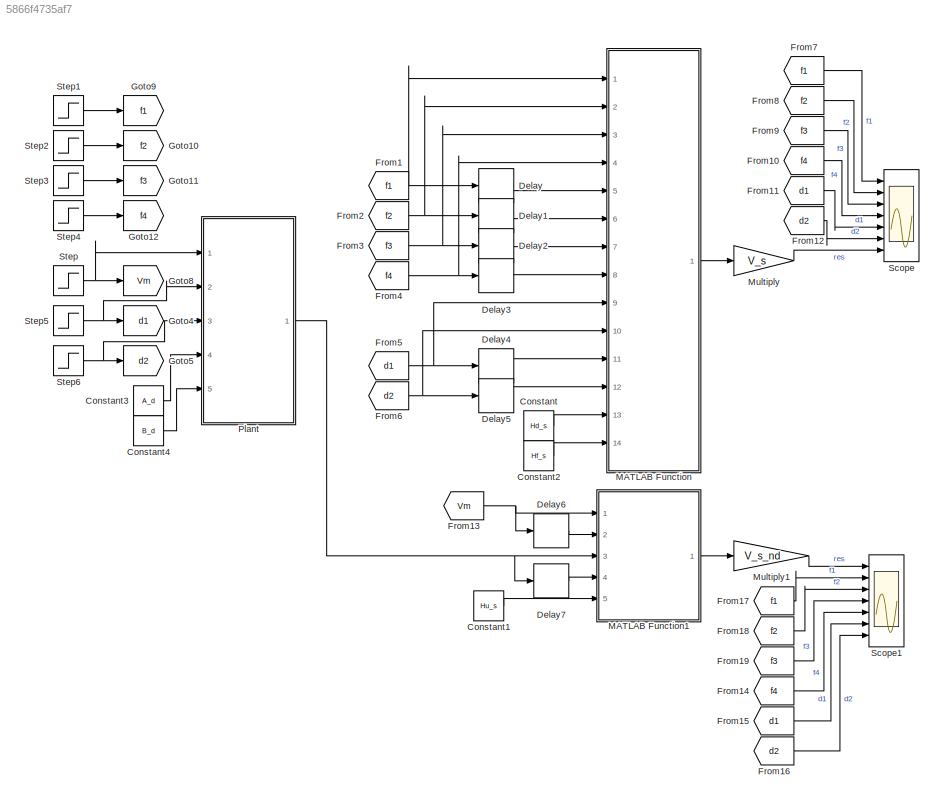
MODEL slx_5866f4735af7
KIND model
CONFIG AbsTol = auto
CONFIG EnableMultiTasking = off
CONFIG FixedStep = auto
CONFIG MaxStep = auto
CONFIG MinStep = auto
CONFIG RelTol = 1e-3
CONFIG SampleTimeConstraint = Unconstrained
CONFIG SolverName = VariableStepAuto
CONFIG StartTime = 0.0
CONFIG StopTime = 10.0
BLOCK [Constant] Constant
  Value = Hd_s
BLOCK [Constant] Constant1
  Value = Hu_s
BLOCK [Constant] Constant2
  Value = Hf_s
BLOCK [Constant] Constant3
  Value = A_d
BLOCK [Constant] Constant4
  Value = B_d
BLOCK [Delay] Delay
  DelayLength = 1
  InitialCondition = 0
  InputPortMap = u0
  Ports = [1, 1]
BLOCK [Delay] Delay1
  DelayLength = 1
  InitialCondition = 0
  InputPortMap = u0
  Ports = [1, 1]
BLOCK [Delay] Delay2
  DelayLength = 1
  InitialCondition = 0
  InputPortMap = u0
  Ports = [1, 1]
BLOCK [Delay] Delay3
  DelayLength = 1
  InitialCondition = 0
  InputPortMap = u0
  Ports = [1, 1]
BLOCK [Delay] Delay4
  DelayLength = 1
  InitialCondition = 0
  InputPortMap = u0
  Ports = [1, 1]
BLOCK [Delay] Delay5
  DelayLength = 1
  InitialCondition = 0
  InputPortMap = u0
  Ports = [1, 1]
BLOCK [Delay] Delay6
  DelayLength = 1
  InitialCondition = 0
  InputPortMap = u0
  Ports = [1, 1]
BLOCK [Delay] Delay7
  DelayLength = 1
  InitialCondition = 0
  InputPortMap = u0
  Ports = [1, 1]
BLOCK [From] From1
  GotoTag = f1
  TagVisibility = global
BLOCK [From] From10
  GotoTag = f4
  TagVisibility = global
BLOCK [From] From11
  GotoTag = d1
  TagVisibility = global
BLOCK [From] From12
  GotoTag = d2
  TagVisibility = global
BLOCK [From] From13
  GotoTag = Vm
  TagVisibility = global
BLOCK [From] From14
  GotoTag = f4
  TagVisibility = global
BLOCK [From] From15
  GotoTag = d1
  TagVisibility = global
BLOCK [From] From16
  GotoTag = d2
  TagVisibility = global
BLOCK [From] From17
  GotoTag = f1
  TagVisibility = global
BLOCK [From] From18
  GotoTag = f2
  TagVisibility = global
BLOCK [From] From19
  GotoTag = f3
  TagVisibility = global
BLOCK [From] From2
  GotoTag = f2
  TagVisibility = global
BLOCK [From] From3
  GotoTag = f3
  TagVisibility = global
BLOCK [From] From4
  GotoTag = f4
  TagVisibility = global
BLOCK [From] From5
  GotoTag = d1
  TagVisibility = global
BLOCK [From] From6
  GotoTag = d2
  TagVisibility = global
BLOCK [From] From7
  GotoTag = f1
  TagVisibility = global
BLOCK [From] From8
  GotoTag = f2
  TagVisibility = global
BLOCK [From] From9
  GotoTag = f3
  TagVisibility = global
BLOCK [Goto] Goto10
  GotoTag = f2
  TagVisibility = global
BLOCK [Goto] Goto11
  GotoTag = f3
  TagVisibility = global
BLOCK [Goto] Goto12
  GotoTag = f4
  TagVisibility = global
BLOCK [Goto] Goto4
  GotoTag = d1
  TagVisibility = global
BLOCK [Goto] Goto5
  GotoTag = d2
  TagVisibility = global
BLOCK [Goto] Goto8
  GotoTag = Vm
  NameLocation = top
  TagVisibility = global
BLOCK [Goto] Goto9
  GotoTag = f1
  TagVisibility = global
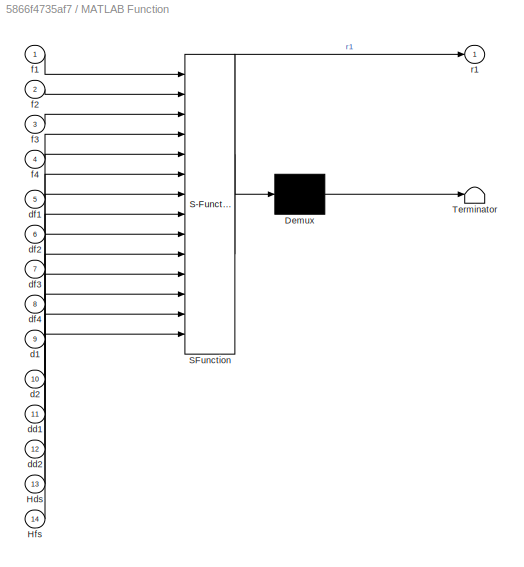
BLOCK [SubSystem] MATLAB Function
  ErrorFcn = Stateflow.Translate.translate
  PermitHierarchicalResolution = ExplicitOnly
  Ports = [14, 1]
  RequestExecContextInheritance = off
  SFBlockType = MATLAB Function
  TreatAsAtomicUnit = on
BLOCK [Demux] MATLAB Function/ Demux 
  Outputs = 1
  Ports = [1, 1]
BLOCK [S-Function] MATLAB Function/ SFunction 
  EnableBusSupport = on
  FunctionName = sf_sfun
  PortCounts = [14 2]
  Ports = [14, 2]
  SFcnIsStateOwnerBlock = off
  SFunctionDeploymentMode = off
  Tag = Stateflow S-Function 1
BLOCK [Terminator] MATLAB Function/ Terminator 
BLOCK [Inport] MATLAB Function/Hds
  Port = 13
BLOCK [Inport] MATLAB Function/Hfs
  Port = 14
BLOCK [Inport] MATLAB Function/d1
  Port = 9
BLOCK [Inport] MATLAB Function/d2
  Port = 10
BLOCK [Inport] MATLAB Function/dd1
  Port = 11
BLOCK [Inport] MATLAB Function/dd2
  Port = 12
BLOCK [Inport] MATLAB Function/df1
  Port = 5
BLOCK [Inport] MATLAB Function/df2
  Port = 6
BLOCK [Inport] MATLAB Function/df3
  Port = 7
BLOCK [Inport] MATLAB Function/df4
  Port = 8
BLOCK [Inport] MATLAB Function/f1
BLOCK [Inport] MATLAB Function/f2
  Port = 2
BLOCK [Inport] MATLAB Function/f3
  Port = 3
BLOCK [Inport] MATLAB Function/f4
  Port = 4
BLOCK [Outport] MATLAB Function/r1
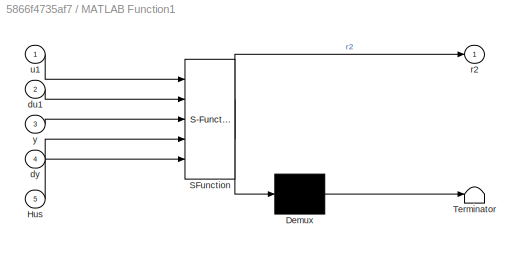
BLOCK [SubSystem] MATLAB Function1
  ErrorFcn = Stateflow.Translate.translate
  PermitHierarchicalResolution = ExplicitOnly
  Ports = [5, 1]
  RequestExecContextInheritance = off
  SFBlockType = MATLAB Function
  TreatAsAtomicUnit = on
BLOCK [Demux] MATLAB Function1/ Demux 
  Outputs = 1
  Ports = [1, 1]
BLOCK [S-Function] MATLAB Function1/ SFunction 
  EnableBusSupport = on
  FunctionName = sf_sfun
  PortCounts = [5 2]
  Ports = [5, 2]
  SFcnIsStateOwnerBlock = off
  SFunctionDeploymentMode = off
  Tag = Stateflow S-Function 3
BLOCK [Terminator] MATLAB Function1/ Terminator 
BLOCK [Inport] MATLAB Function1/Hus
  Port = 5
BLOCK [Inport] MATLAB Function1/du1
  Port = 2
BLOCK [Inport] MATLAB Function1/dy
  Port = 4
BLOCK [Outport] MATLAB Function1/r2
BLOCK [Inport] MATLAB Function1/u1
BLOCK [Inport] MATLAB Function1/y
  Port = 3
BLOCK [Gain] Multiply
  Gain = V_s
  Multiplication = Matrix(K*u)
BLOCK [Gain] Multiply1
  Gain = V_s_nd
  Multiplication = Matrix(K*u)
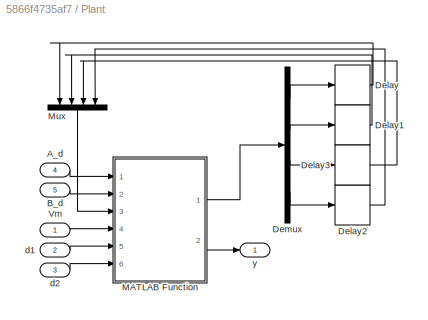
BLOCK [SubSystem] Plant
  Ports = [5, 1]
  RequestExecContextInheritance = off
BLOCK [Inport] Plant/A_d
  Port = 4
BLOCK [Inport] Plant/B_d
  Port = 5
BLOCK [Delay] Plant/Delay
  DelayLength = 1
  InputPortMap = u0
  InputProcessing = Columns as channels (frame based)
  Ports = [1, 1]
BLOCK [Delay] Plant/Delay1
  DelayLength = 1
  InputPortMap = u0
  InputProcessing = Columns as channels (frame based)
  Ports = [1, 1]
BLOCK [Delay] Plant/Delay2
  DelayLength = 1
  InputPortMap = u0
  InputProcessing = Columns as channels (frame based)
  Ports = [1, 1]
BLOCK [Delay] Plant/Delay3
  DelayLength = 1
  InputPortMap = u0
  InputProcessing = Columns as channels (frame based)
  Ports = [1, 1]
BLOCK [Demux] Plant/Demux
  Ports = [1, 4]
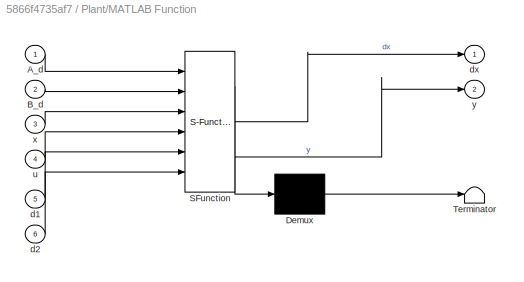
BLOCK [SubSystem] Plant/MATLAB Function
  ErrorFcn = Stateflow.Translate.translate
  PermitHierarchicalResolution = ExplicitOnly
  Ports = [6, 2]
  RequestExecContextInheritance = off
  SFBlockType = MATLAB Function
  TreatAsAtomicUnit = on
BLOCK [Demux] Plant/MATLAB Function/ Demux 
  Outputs = 1
  Ports = [1, 1]
BLOCK [S-Function] Plant/MATLAB Function/ SFunction 
  EnableBusSupport = on
  FunctionName = sf_sfun
  PortCounts = [6 3]
  Ports = [6, 3]
  SFcnIsStateOwnerBlock = off
  SFunctionDeploymentMode = off
  Tag = Stateflow S-Function 2
BLOCK [Terminator] Plant/MATLAB Function/ Terminator 
BLOCK [Inport] Plant/MATLAB Function/A_d
BLOCK [Inport] Plant/MATLAB Function/B_d
  Port = 2
BLOCK [Inport] Plant/MATLAB Function/d1
  Port = 5
BLOCK [Inport] Plant/MATLAB Function/d2
  Port = 6
BLOCK [Outport] Plant/MATLAB Function/dx
BLOCK [Inport] Plant/MATLAB Function/u
  Port = 4
BLOCK [Inport] Plant/MATLAB Function/x
  Port = 3
BLOCK [Outport] Plant/MATLAB Function/y
  Port = 2
BLOCK [Mux] Plant/Mux
  DisplayOption = bar
  NameLocation = left
  Ports = [4, 1]
BLOCK [Inport] Plant/Vm
BLOCK [Inport] Plant/d1
  Port = 2
BLOCK [Inport] Plant/d2
  Port = 3
BLOCK [Outport] Plant/y
BLOCK [Scope] Scope
  Floating = off
  NumInputPorts = 7
  Ports = [7]
  ScopeSpecificationString = Simulink.scopes.TimeScopeBlockCfg('CurrentConfiguration', extmgr.ConfigurationSet(extmgr.Configuration('Core','General UI',true),extmgr.Configuration('Core','Source UI',true),extmgr.Configuration('Sources','WiredSimulink',true),extmgr.Configuration('Visuals','Time Domain',true,'SerializedDisplays',{struct('MinYLimReal','-0.375','MaxYLimReal','2.41637','YLabelReal','','MinYLimMag','0.00000','MaxYLi...<+1679ch>
BLOCK [Scope] Scope1
  Floating = off
  NumInputPorts = 7
  Ports = [7]
  ScopeSpecificationString = Simulink.scopes.TimeScopeBlockCfg('CurrentConfiguration', extmgr.ConfigurationSet(extmgr.Configuration('Core','General UI',true),extmgr.Configuration('Core','Source UI',true),extmgr.Configuration('Sources','WiredSimulink',true,'DataLoggingVariableName','ScopeData1'),extmgr.Configuration('Visuals','Time Domain',true,'SerializedDisplays',{struct('MinYLimReal','-0.00146','MaxYLimReal','0.01316','YLab...<+2365ch>
BLOCK [Step] Step
  After = 5
  Before = 1
  SampleTime = 0
  Time = 2
BLOCK [Step] Step1
  After = 2
  SampleTime = 0
BLOCK [Step] Step2
  After = 2
  SampleTime = 0
  Time = 2
BLOCK [Step] Step3
  After = 2
  SampleTime = 0
  Time = 3
BLOCK [Step] Step4
  After = 3
  SampleTime = 0
  Time = 4
BLOCK [Step] Step5
  After = 0.1
  SampleTime = 0
  Time = 2.5
BLOCK [Step] Step6
  After = 0.2
  SampleTime = 0
  Time = 4.5
LINE Constant1:1 -> MATLAB Function1:5
LINE Constant2:1 -> MATLAB Function:14
LINE Constant3:1 -> Plant:4
LINE Constant4:1 -> Plant:5
LINE Constant:1 -> MATLAB Function:13
LINE Delay1:1 -> MATLAB Function:6
LINE Delay2:1 -> MATLAB Function:7
LINE Delay3:1 -> MATLAB Function:8
LINE Delay4:1 -> MATLAB Function:11
LINE Delay5:1 -> MATLAB Function:12
LINE Delay6:1 -> MATLAB Function1:2
LINE Delay7:1 -> MATLAB Function1:4
LINE Delay:1 -> MATLAB Function:5
LINE From10:1 -> Scope:4
LINE From11:1 -> Scope:5
LINE From12:1 -> Scope:6
NET From13:1 -> Delay6:1, MATLAB Function1:1
LINE From14:1 -> Scope1:5
LINE From15:1 -> Scope1:6
LINE From16:1 -> Scope1:7
LINE From17:1 -> Scope1:2
LINE From18:1 -> Scope1:3
LINE From19:1 -> Scope1:4
NET From1:1 -> Delay:1, MATLAB Function:1
NET From2:1 -> Delay1:1, MATLAB Function:2
NET From3:1 -> Delay2:1, MATLAB Function:3
NET From4:1 -> Delay3:1, MATLAB Function:4
NET From5:1 -> Delay4:1, MATLAB Function:9
NET From6:1 -> Delay5:1, MATLAB Function:10
LINE From7:1 -> Scope:1
LINE From8:1 -> Scope:2
LINE From9:1 -> Scope:3
LINE MATLAB Function1:1 -> Multiply1:1
LINE MATLAB Function:1 -> Multiply:1
LINE Multiply1:1 -> Scope1:1
LINE Multiply:1 -> Scope:7
LINE Plant/A_d:1 -> Plant/MATLAB Function:1
LINE Plant/B_d:1 -> Plant/MATLAB Function:2
LINE Plant/Delay1:1 -> Plant/Mux:2
LINE Plant/Delay2:1 -> Plant/Mux:4
LINE Plant/Delay3:1 -> Plant/Mux:3
LINE Plant/Delay:1 -> Plant/Mux:1
LINE Plant/Demux:1 -> Plant/Delay:1
LINE Plant/Demux:2 -> Plant/Delay1:1
LINE Plant/Demux:3 -> Plant/Delay3:1
LINE Plant/Demux:4 -> Plant/Delay2:1
LINE Plant/MATLAB Function:1 -> Plant/Demux:1
LINE Plant/MATLAB Function:2 -> Plant/y:1
LINE Plant/Mux:1 -> Plant/MATLAB Function:3
LINE Plant/Vm:1 -> Plant/MATLAB Function:4
LINE Plant/d1:1 -> Plant/MATLAB Function:5
LINE Plant/d2:1 -> Plant/MATLAB Function:6
NET Plant:1 -> Delay7:1, MATLAB Function1:3
LINE Step1:1 -> Goto9:1
LINE Step2:1 -> Goto10:1
LINE Step3:1 -> Goto11:1
LINE Step4:1 -> Goto12:1
NET Step5:1 -> Goto4:1, Plant:2
NET Step6:1 -> Goto5:1, Plant:3
NET Step:1 -> Goto8:1, Plant:1
note: NET lines group one-source signal fan-out (src -> all destinations, sorted); 1:1 wires keep LINE
CHART MATLAB Function states=1 transitions=1
  STATE_LABEL 'eML_blk_kernel()'
  STATE_LABEL 'SCRIPT:\nfunction r1 = fcn(f1,f2,f3,f4,df1,df2,df3,df4,d1,d2,dd1,dd2,Hds,Hfs)\nd=[dd1;d1;dd2;d2];\nf=[df1;f1;df2;f2;df3;f3;df4;f4];\nr1 = (Hds*d + Hfs*f);\n'
CHART Plant/MATLAB Function states=1 transitions=1
  STATE_LABEL 'eML_blk_kernel()'
  STATE_LABEL 'SCRIPT:\nfunction [dx,y]  = plant(A_d,B_d,x,u,d1,d2)\ndx = zeros(4,1);\nA=A_d;\nB = B_d;\nC = eye(4);\nE=[1 0;0 1;0 0;0 0];\ntemp = A*x;\ntemp2 = B*u;\ntemp3 = E*[d1;d2];\ny=C*x;\n%y = size(dx,1);\nend'
CHART MATLAB Function1 states=1 transitions=1
  STATE_LABEL 'eML_blk_kernel()'
  STATE_LABEL 'SCRIPT:\nfunction r2 = fcn(u1,du1,y,dy,Hus)\ny=[dy;y];\nu=[du1;u1];\nr2 = y-Hus*u;\n'
CHART  states=0 transitions=0
CHART  states=0 transitions=0
CHART  states=0 transitions=0
